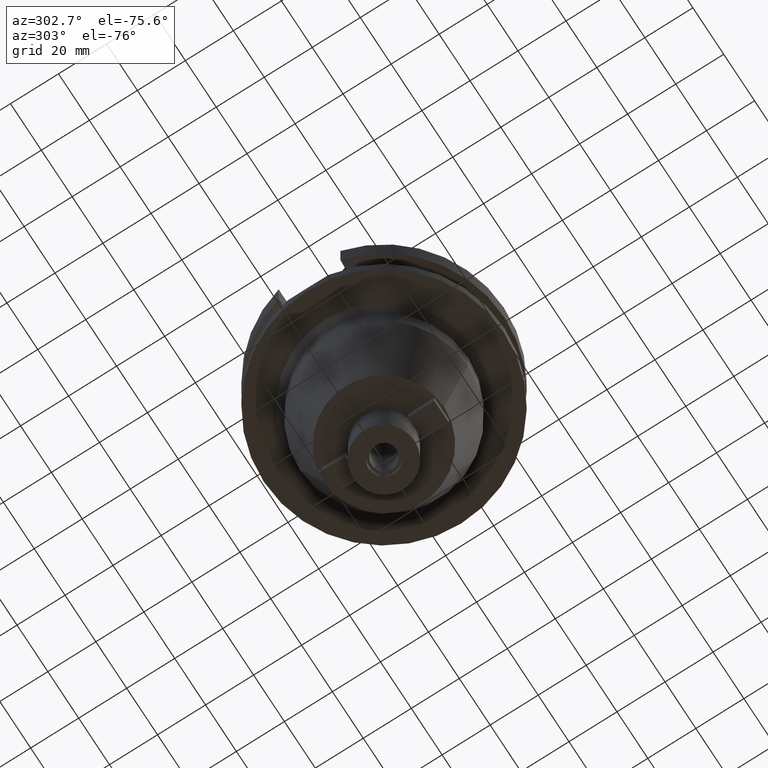
[diagram: clean part render]
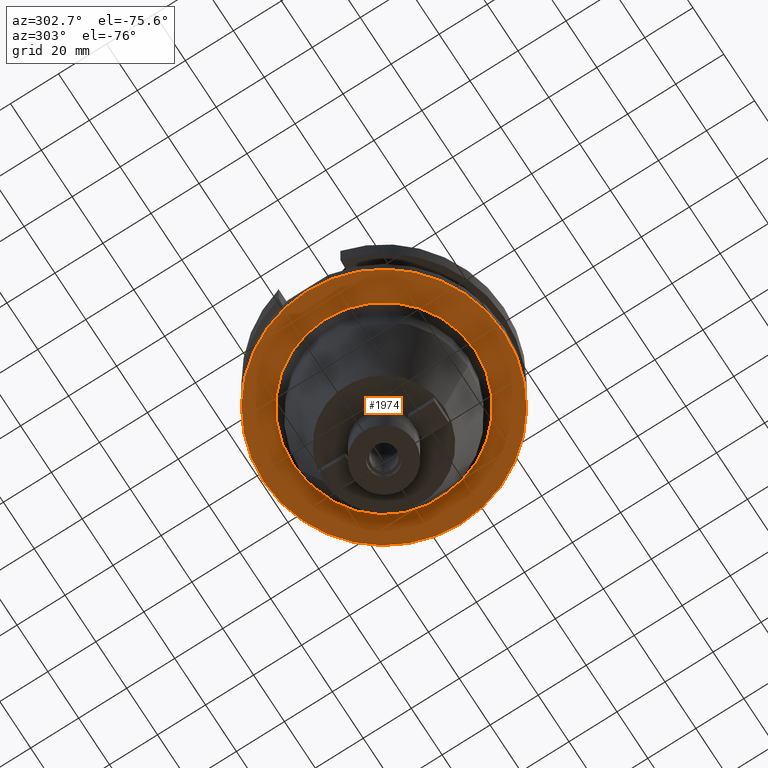
[diagram: same view with one face highlighted and labeled with its STEP entity id]
A machine part, auxiliary view. The second image highlights one B-rep face of the part: STEP entity #1974.
In plain terms, the highlighted planar face has unit normal (0, 0, -1).
Its self-contained STEP definition (entity closure, byte-faithful):
#502=CARTESIAN_POINT('',(0.E0,1.377605184361E-14,-3.8E1));
#503=DIRECTION('',(0.E0,0.E0,1.E0));
#504=DIRECTION('',(0.E0,-1.E0,0.E0));
#505=AXIS2_PLACEMENT_3D('',#502,#503,#504);
#510=CARTESIAN_POINT('',(0.E0,1.377605184361E-14,-3.8E1));
#511=DIRECTION('',(0.E0,0.E0,1.E0));
#512=DIRECTION('',(0.E0,1.E0,0.E0));
#513=AXIS2_PLACEMENT_3D('',#510,#511,#512);
#518=CARTESIAN_POINT('',(0.E0,0.E0,-3.8E1));
#519=DIRECTION('',(0.E0,0.E0,-1.E0));
#520=DIRECTION('',(0.E0,-1.E0,0.E0));
#521=AXIS2_PLACEMENT_3D('',#518,#519,#520);
#526=CARTESIAN_POINT('',(0.E0,0.E0,-3.8E1));
#527=DIRECTION('',(0.E0,0.E0,-1.E0));
#528=DIRECTION('',(0.E0,1.E0,0.E0));
#529=AXIS2_PLACEMENT_3D('',#526,#527,#528);
#1376=CARTESIAN_POINT('',(0.E0,3.8E1,-3.8E1));
#1377=VERTEX_POINT('',#1376);
#1378=CARTESIAN_POINT('',(0.E0,-3.8E1,-3.8E1));
#1379=VERTEX_POINT('',#1378);
#1380=CARTESIAN_POINT('',(0.E0,-5.E1,-3.8E1));
#1381=CARTESIAN_POINT('',(0.E0,5.E1,-3.8E1));
#1382=VERTEX_POINT('',#1380);
#1383=VERTEX_POINT('',#1381);
#1959=CARTESIAN_POINT('',(0.E0,0.E0,-3.8E1));
#1960=DIRECTION('',(0.E0,0.E0,-1.E0));
#1961=DIRECTION('',(0.E0,-1.E0,0.E0));
#1962=AXIS2_PLACEMENT_3D('',#1959,#1960,#1961);
#1963=PLANE('',#1962);
#1965=ORIENTED_EDGE('',*,*,#1964,.T.);
#1967=ORIENTED_EDGE('',*,*,#1966,.T.);
#1968=EDGE_LOOP('',(#1965,#1967));
#1969=FACE_OUTER_BOUND('',#1968,.F.);
#1970=ORIENTED_EDGE('',*,*,#1952,.T.);
#1971=ORIENTED_EDGE('',*,*,#1941,.T.);
#1972=EDGE_LOOP('',(#1970,#1971));
#1973=FACE_BOUND('',#1972,.F.);
#506=CIRCLE('',#505,5.E1);
#514=CIRCLE('',#513,5.E1);
#522=CIRCLE('',#521,3.8E1);
#530=CIRCLE('',#529,3.8E1);
#1941=EDGE_CURVE('',#1377,#1379,#530,.T.);
#1952=EDGE_CURVE('',#1379,#1377,#522,.T.);
#1964=EDGE_CURVE('',#1382,#1383,#506,.T.);
#1966=EDGE_CURVE('',#1383,#1382,#514,.T.);
#1974=ADVANCED_FACE('',(#1969,#1973),#1963,.T.);